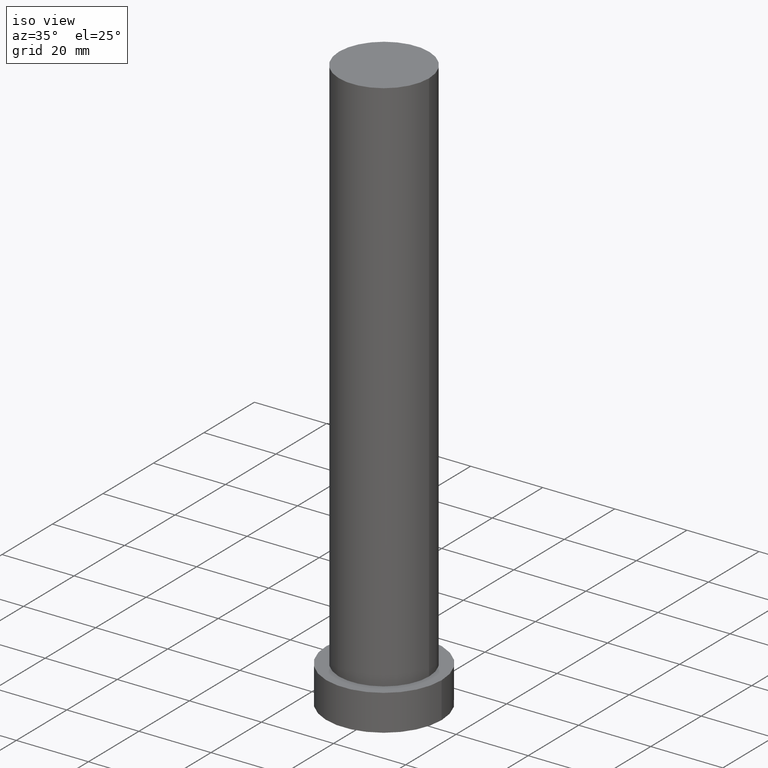
[diagram: clean part render]
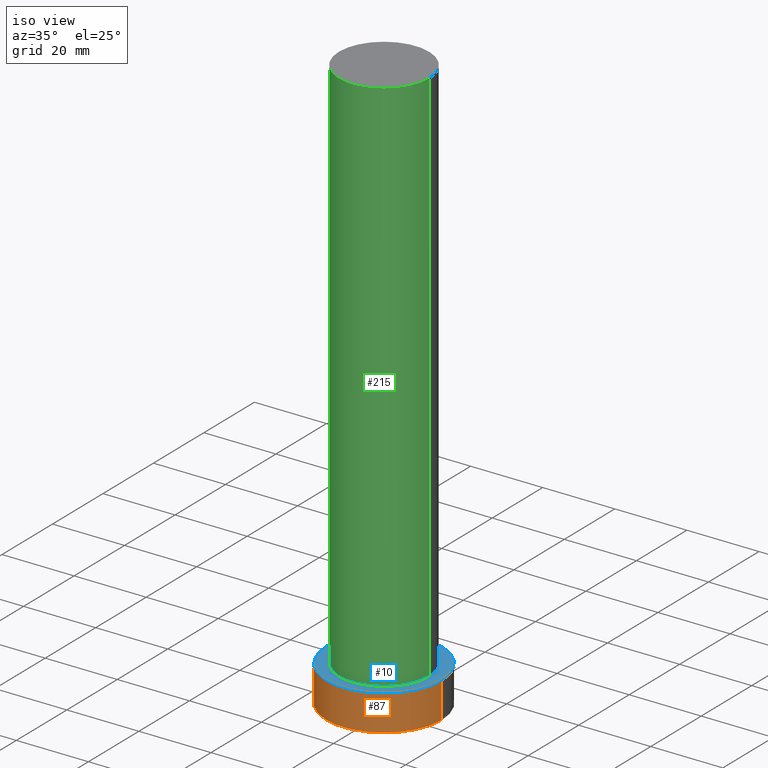
[diagram: same view with three faces highlighted in distinct colors, each labeled with its STEP entity id]
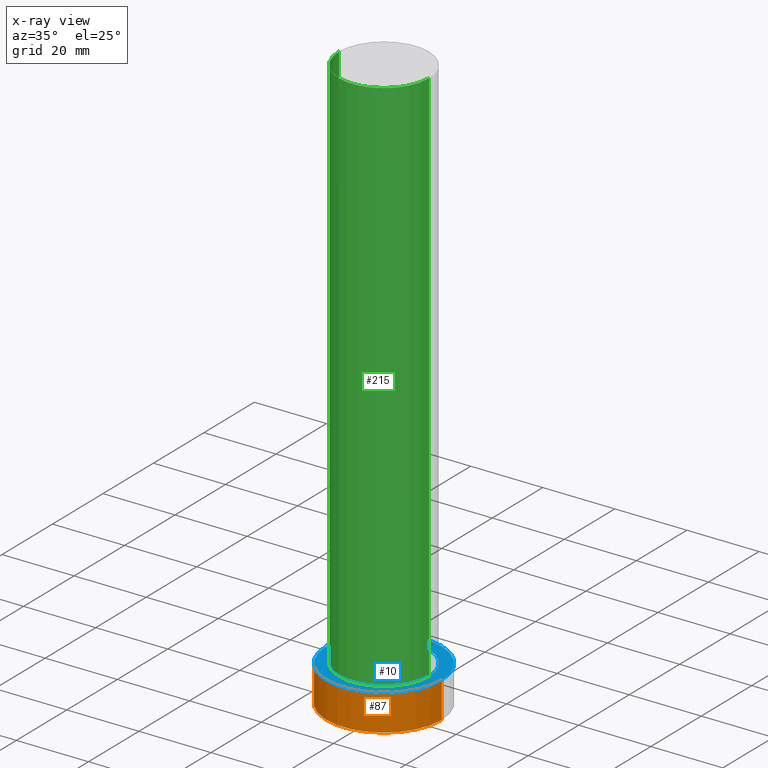
[diagram: x-ray of the same camera — body ghosted, the three highlighted faces saturated]
A machine part, iso view with three faces highlighted in distinct colors.
The next image is the same camera in x-ray (body ghosted, the three faces saturated) — at least one of them is partly hidden behind the body in this view.
Their STEP definitions:

[orange] entity #87 — the highlighted cylindrical surface (partial cylindrical patch) has radius 16 mm, axis along (-0, -0, -1).
#3 = LINE ( 'NONE', #46, #191 ) ;
#16 = AXIS2_PLACEMENT_3D ( 'NONE', #201, #184, #139 ) ;
#26 = CARTESIAN_POINT ( 'NONE',  ( 16.00000000000000000, 1.959434878635765131E-15, 0.000000000000000000 ) ) ;
#30 = VERTEX_POINT ( 'NONE', #36 ) ;
#36 = CARTESIAN_POINT ( 'NONE',  ( -16.00000000000000000, 0.000000000000000000, 10.00000000000000000 ) ) ;
#46 = CARTESIAN_POINT ( 'NONE',  ( 16.00000000000000000, 1.959434878635765131E-15, 10.00000000000000000 ) ) ;
#48 = DIRECTION ( 'NONE',  ( -0.000000000000000000, -0.000000000000000000, -1.000000000000000000 ) ) ;
#52 = ORIENTED_EDGE ( 'NONE', *, *, #112, .F. ) ;
#68 = CARTESIAN_POINT ( 'NONE',  ( -16.00000000000000000, 0.000000000000000000, 0.000000000000000000 ) ) ;
#75 = ORIENTED_EDGE ( 'NONE', *, *, #251, .T. ) ;
#83 = CARTESIAN_POINT ( 'NONE',  ( 16.00000000000000000, 1.959434878635765131E-15, 10.00000000000000000 ) ) ;
#85 = CARTESIAN_POINT ( 'NONE',  ( 0.000000000000000000, 0.000000000000000000, 10.00000000000000000 ) ) ;
#87 = ADVANCED_FACE ( 'NONE', ( #182 ), #121, .T. ) ;
#91 = ORIENTED_EDGE ( 'NONE', *, *, #172, .T. ) ;
#93 = VERTEX_POINT ( 'NONE', #26 ) ;
#106 = DIRECTION ( 'NONE',  ( 0.000000000000000000, 0.000000000000000000, 1.000000000000000000 ) ) ;
#108 = ORIENTED_EDGE ( 'NONE', *, *, #205, .F. ) ;
#112 = EDGE_CURVE ( 'NONE', #30, #148, #198, .T. ) ;
#120 = DIRECTION ( 'NONE',  ( 1.000000000000000000, 0.000000000000000000, 0.000000000000000000 ) ) ;
#121 = CYLINDRICAL_SURFACE ( 'NONE', #16, 16.00000000000000000 ) ;
#123 = DIRECTION ( 'NONE',  ( 0.000000000000000000, 0.000000000000000000, 1.000000000000000000 ) ) ;
#139 = DIRECTION ( 'NONE',  ( -1.000000000000000000, 0.000000000000000000, 0.000000000000000000 ) ) ;
#143 = LINE ( 'NONE', #224, #152 ) ;
#144 = DIRECTION ( 'NONE',  ( 1.000000000000000000, 0.000000000000000000, 0.000000000000000000 ) ) ;
#148 = VERTEX_POINT ( 'NONE', #83 ) ;
#152 = VECTOR ( 'NONE', #48, 1000.000000000000000 ) ;
#161 = AXIS2_PLACEMENT_3D ( 'NONE', #85, #123, #120 ) ;
#169 = VERTEX_POINT ( 'NONE', #68 ) ;
#172 = EDGE_CURVE ( 'NONE', #30, #169, #143, .T. ) ;
#173 = CIRCLE ( 'NONE', #214, 16.00000000000000000 ) ;
#182 = FACE_OUTER_BOUND ( 'NONE', #229, .T. ) ;
#183 = DIRECTION ( 'NONE',  ( -0.000000000000000000, -0.000000000000000000, -1.000000000000000000 ) ) ;
#184 = DIRECTION ( 'NONE',  ( -0.000000000000000000, -0.000000000000000000, -1.000000000000000000 ) ) ;
#190 = CARTESIAN_POINT ( 'NONE',  ( 0.000000000000000000, 0.000000000000000000, 0.000000000000000000 ) ) ;
#191 = VECTOR ( 'NONE', #183, 1000.000000000000000 ) ;
#198 = CIRCLE ( 'NONE', #161, 16.00000000000000000 ) ;
#201 = CARTESIAN_POINT ( 'NONE',  ( 0.000000000000000000, 0.000000000000000000, 10.00000000000000000 ) ) ;
#205 = EDGE_CURVE ( 'NONE', #148, #93, #3, .T. ) ;
#214 = AXIS2_PLACEMENT_3D ( 'NONE', #190, #106, #144 ) ;
#224 = CARTESIAN_POINT ( 'NONE',  ( -16.00000000000000000, 0.000000000000000000, 10.00000000000000000 ) ) ;
#229 = EDGE_LOOP ( 'NONE', ( #108, #52, #91, #75 ) ) ;
#251 = EDGE_CURVE ( 'NONE', #169, #93, #173, .T. ) ;

[blue] entity #10 — the highlighted planar face has unit normal (0, 0, 1).
#7 = AXIS2_PLACEMENT_3D ( 'NONE', #66, #45, #203 ) ;
#10 = ADVANCED_FACE ( 'NONE', ( #111, #232 ), #95, .T. ) ;
#15 = ORIENTED_EDGE ( 'NONE', *, *, #156, .T. ) ;
#23 = AXIS2_PLACEMENT_3D ( 'NONE', #170, #79, #57 ) ;
#24 = CARTESIAN_POINT ( 'NONE',  ( -12.50000000000000000, 0.000000000000000000, 10.00000000000000000 ) ) ;
#27 = CARTESIAN_POINT ( 'NONE',  ( 0.000000000000000000, 0.000000000000000000, 10.00000000000000000 ) ) ;
#30 = VERTEX_POINT ( 'NONE', #36 ) ;
#36 = CARTESIAN_POINT ( 'NONE',  ( -16.00000000000000000, 0.000000000000000000, 10.00000000000000000 ) ) ;
#40 = CIRCLE ( 'NONE', #187, 12.50000000000000000 ) ;
#45 = DIRECTION ( 'NONE',  ( 0.000000000000000000, 0.000000000000000000, 1.000000000000000000 ) ) ;
#55 = AXIS2_PLACEMENT_3D ( 'NONE', #27, #64, #71 ) ;
#57 = DIRECTION ( 'NONE',  ( 1.000000000000000000, 0.000000000000000000, -0.000000000000000000 ) ) ;
#64 = DIRECTION ( 'NONE',  ( 0.000000000000000000, 0.000000000000000000, 1.000000000000000000 ) ) ;
#66 = CARTESIAN_POINT ( 'NONE',  ( 0.000000000000000000, 0.000000000000000000, 10.00000000000000000 ) ) ;
#71 = DIRECTION ( 'NONE',  ( 1.000000000000000000, 0.000000000000000000, 0.000000000000000000 ) ) ;
#79 = DIRECTION ( 'NONE',  ( 0.000000000000000000, 0.000000000000000000, 1.000000000000000000 ) ) ;
#83 = CARTESIAN_POINT ( 'NONE',  ( 16.00000000000000000, 1.959434878635765131E-15, 10.00000000000000000 ) ) ;
#85 = CARTESIAN_POINT ( 'NONE',  ( 0.000000000000000000, 0.000000000000000000, 10.00000000000000000 ) ) ;
#95 = PLANE ( 'NONE',  #23 ) ;
#102 = DIRECTION ( 'NONE',  ( 1.000000000000000000, 0.000000000000000000, 0.000000000000000000 ) ) ;
#111 = FACE_BOUND ( 'NONE', #192, .T. ) ;
#112 = EDGE_CURVE ( 'NONE', #30, #148, #198, .T. ) ;
#116 = CIRCLE ( 'NONE', #7, 16.00000000000000000 ) ;
#120 = DIRECTION ( 'NONE',  ( 1.000000000000000000, 0.000000000000000000, 0.000000000000000000 ) ) ;
#123 = DIRECTION ( 'NONE',  ( 0.000000000000000000, 0.000000000000000000, 1.000000000000000000 ) ) ;
#130 = VERTEX_POINT ( 'NONE', #24 ) ;
#132 = CIRCLE ( 'NONE', #55, 12.50000000000000000 ) ;
#133 = ORIENTED_EDGE ( 'NONE', *, *, #112, .T. ) ;
#138 = EDGE_CURVE ( 'NONE', #130, #212, #40, .T. ) ;
#148 = VERTEX_POINT ( 'NONE', #83 ) ;
#151 = ORIENTED_EDGE ( 'NONE', *, *, #189, .F. ) ;
#156 = EDGE_CURVE ( 'NONE', #148, #30, #116, .T. ) ;
#158 = DIRECTION ( 'NONE',  ( 0.000000000000000000, 0.000000000000000000, 1.000000000000000000 ) ) ;
#161 = AXIS2_PLACEMENT_3D ( 'NONE', #85, #123, #120 ) ;
#170 = CARTESIAN_POINT ( 'NONE',  ( 0.000000000000000000, 0.000000000000000000, 10.00000000000000000 ) ) ;
#185 = CARTESIAN_POINT ( 'NONE',  ( 12.50000000000000000, 1.530808498934191521E-15, 10.00000000000000000 ) ) ;
#187 = AXIS2_PLACEMENT_3D ( 'NONE', #240, #158, #102 ) ;
#189 = EDGE_CURVE ( 'NONE', #212, #130, #132, .T. ) ;
#192 = EDGE_LOOP ( 'NONE', ( #211, #151 ) ) ;
#198 = CIRCLE ( 'NONE', #161, 16.00000000000000000 ) ;
#203 = DIRECTION ( 'NONE',  ( 1.000000000000000000, 0.000000000000000000, 0.000000000000000000 ) ) ;
#211 = ORIENTED_EDGE ( 'NONE', *, *, #138, .F. ) ;
#212 = VERTEX_POINT ( 'NONE', #185 ) ;
#225 = EDGE_LOOP ( 'NONE', ( #133, #15 ) ) ;
#232 = FACE_OUTER_BOUND ( 'NONE', #225, .T. ) ;
#240 = CARTESIAN_POINT ( 'NONE',  ( 0.000000000000000000, 0.000000000000000000, 10.00000000000000000 ) ) ;

[green] entity #215 — the highlighted cylindrical surface (partial cylindrical patch) has radius 12.5 mm, axis along (-0, -0, -1).
#6 = CYLINDRICAL_SURFACE ( 'NONE', #98, 12.50000000000000000 ) ;
#9 = EDGE_LOOP ( 'NONE', ( #13, #34, #56, #166 ) ) ;
#13 = ORIENTED_EDGE ( 'NONE', *, *, #17, .F. ) ;
#17 = EDGE_CURVE ( 'NONE', #49, #212, #213, .T. ) ;
#24 = CARTESIAN_POINT ( 'NONE',  ( -12.50000000000000000, 0.000000000000000000, 10.00000000000000000 ) ) ;
#34 = ORIENTED_EDGE ( 'NONE', *, *, #128, .F. ) ;
#40 = CIRCLE ( 'NONE', #187, 12.50000000000000000 ) ;
#49 = VERTEX_POINT ( 'NONE', #177 ) ;
#53 = EDGE_CURVE ( 'NONE', #77, #130, #195, .T. ) ;
#56 = ORIENTED_EDGE ( 'NONE', *, *, #53, .T. ) ;
#77 = VERTEX_POINT ( 'NONE', #220 ) ;
#86 = AXIS2_PLACEMENT_3D ( 'NONE', #243, #204, #222 ) ;
#89 = DIRECTION ( 'NONE',  ( -0.000000000000000000, -0.000000000000000000, -1.000000000000000000 ) ) ;
#90 = DIRECTION ( 'NONE',  ( -0.000000000000000000, -0.000000000000000000, -1.000000000000000000 ) ) ;
#98 = AXIS2_PLACEMENT_3D ( 'NONE', #188, #90, #149 ) ;
#99 = VECTOR ( 'NONE', #89, 1000.000000000000000 ) ;
#102 = DIRECTION ( 'NONE',  ( 1.000000000000000000, 0.000000000000000000, 0.000000000000000000 ) ) ;
#113 = CARTESIAN_POINT ( 'NONE',  ( 12.50000000000000000, 1.530808498934191521E-15, 160.0000000000000000 ) ) ;
#128 = EDGE_CURVE ( 'NONE', #77, #49, #230, .T. ) ;
#130 = VERTEX_POINT ( 'NONE', #24 ) ;
#135 = DIRECTION ( 'NONE',  ( -0.000000000000000000, -0.000000000000000000, -1.000000000000000000 ) ) ;
#137 = VECTOR ( 'NONE', #135, 1000.000000000000000 ) ;
#138 = EDGE_CURVE ( 'NONE', #130, #212, #40, .T. ) ;
#147 = FACE_OUTER_BOUND ( 'NONE', #9, .T. ) ;
#149 = DIRECTION ( 'NONE',  ( -1.000000000000000000, 0.000000000000000000, 0.000000000000000000 ) ) ;
#158 = DIRECTION ( 'NONE',  ( 0.000000000000000000, 0.000000000000000000, 1.000000000000000000 ) ) ;
#166 = ORIENTED_EDGE ( 'NONE', *, *, #138, .T. ) ;
#175 = CARTESIAN_POINT ( 'NONE',  ( -12.50000000000000000, 0.000000000000000000, 160.0000000000000000 ) ) ;
#177 = CARTESIAN_POINT ( 'NONE',  ( 12.50000000000000000, 1.530808498934191521E-15, 160.0000000000000000 ) ) ;
#185 = CARTESIAN_POINT ( 'NONE',  ( 12.50000000000000000, 1.530808498934191521E-15, 10.00000000000000000 ) ) ;
#187 = AXIS2_PLACEMENT_3D ( 'NONE', #240, #158, #102 ) ;
#188 = CARTESIAN_POINT ( 'NONE',  ( 0.000000000000000000, 0.000000000000000000, 160.0000000000000000 ) ) ;
#195 = LINE ( 'NONE', #175, #137 ) ;
#204 = DIRECTION ( 'NONE',  ( 0.000000000000000000, 0.000000000000000000, 1.000000000000000000 ) ) ;
#212 = VERTEX_POINT ( 'NONE', #185 ) ;
#213 = LINE ( 'NONE', #113, #99 ) ;
#215 = ADVANCED_FACE ( 'NONE', ( #147 ), #6, .T. ) ;
#220 = CARTESIAN_POINT ( 'NONE',  ( -12.50000000000000000, 0.000000000000000000, 160.0000000000000000 ) ) ;
#222 = DIRECTION ( 'NONE',  ( 1.000000000000000000, 0.000000000000000000, 0.000000000000000000 ) ) ;
#230 = CIRCLE ( 'NONE', #86, 12.50000000000000000 ) ;
#240 = CARTESIAN_POINT ( 'NONE',  ( 0.000000000000000000, 0.000000000000000000, 10.00000000000000000 ) ) ;
#243 = CARTESIAN_POINT ( 'NONE',  ( 0.000000000000000000, 0.000000000000000000, 160.0000000000000000 ) ) ;